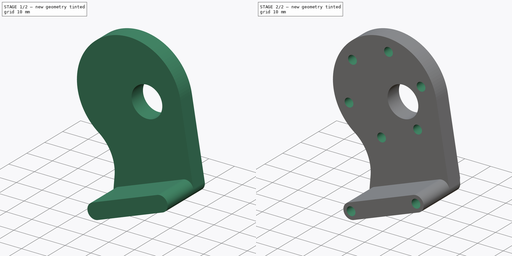
[diagram: build sequence overview — one tinted view per stage of 2, left to right]
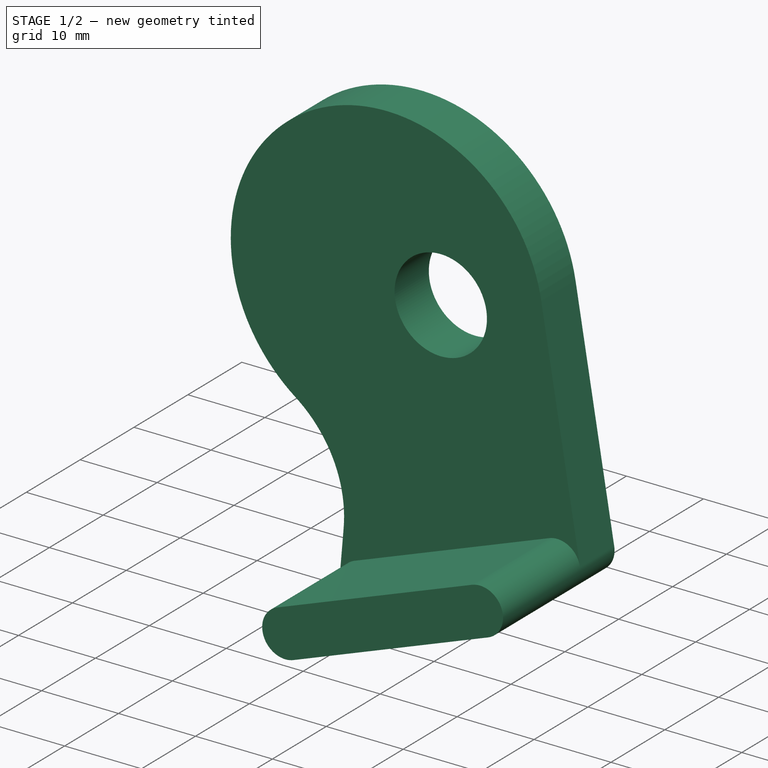
[diagram: stage 1 of 2 — iso view after this stage's code; geometry added in this stage tinted green]
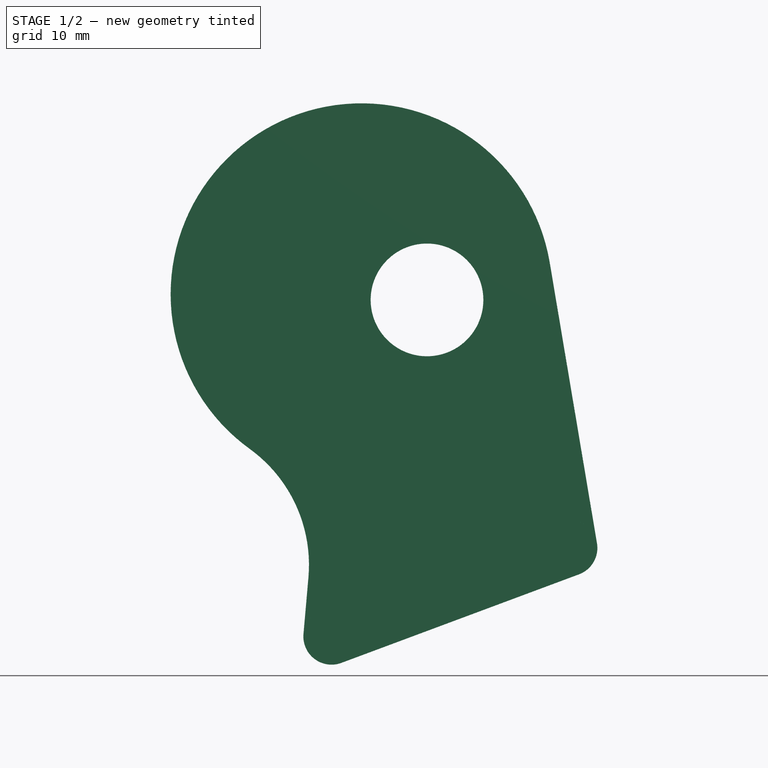
[diagram: stage 1 of 2 — front view after this stage's code; geometry added in this stage tinted green]
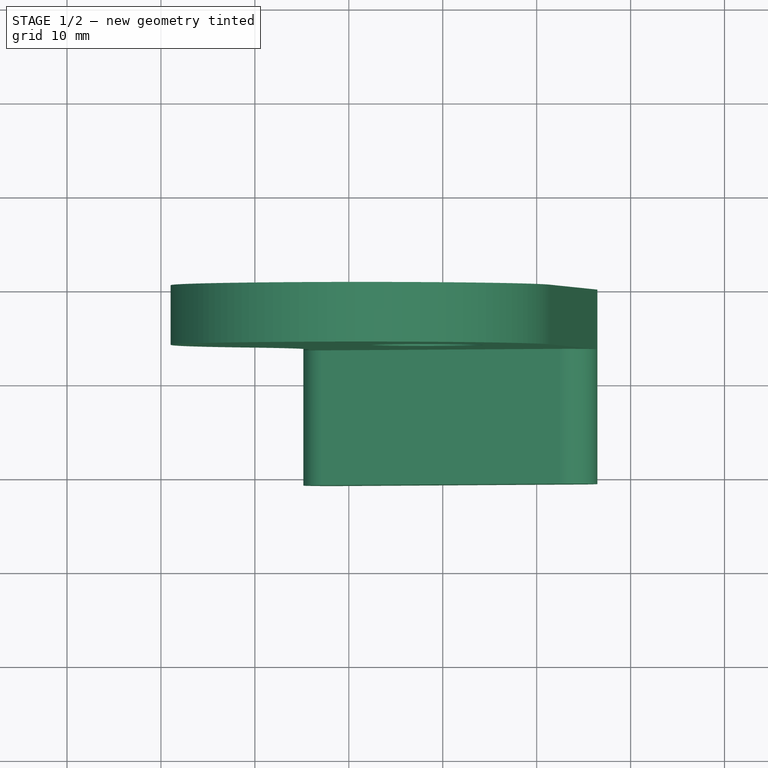
[diagram: stage 1 of 2 — top view after this stage's code; geometry added in this stage tinted green]
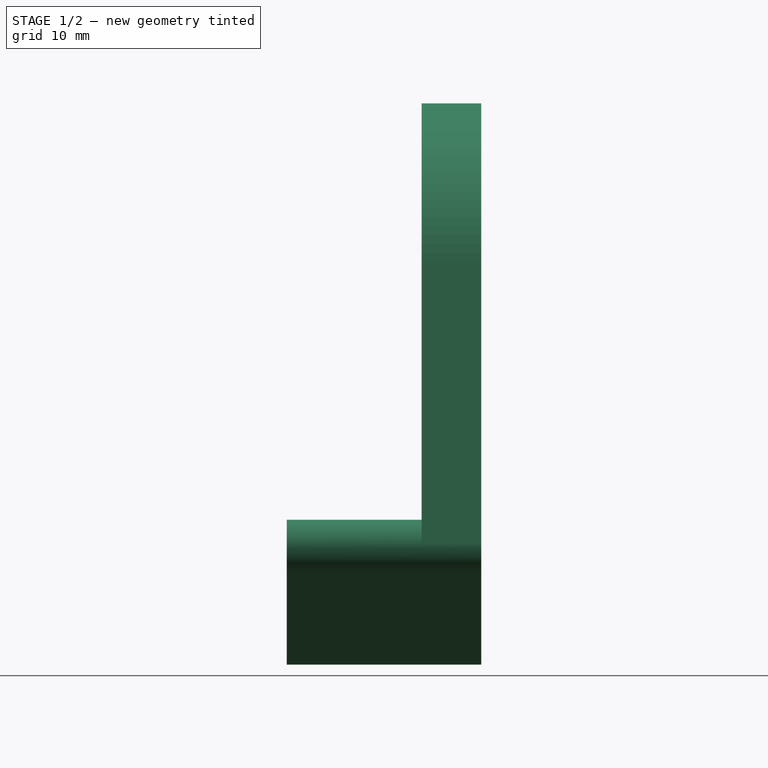
[diagram: stage 1 of 2 — right view after this stage's code; geometry added in this stage tinted green]
FCSTD DOCUMENT  (FreeCAD 1.0R39109 (Git))
Label: front bracket v2
License: All rights reserved
LicenseURL: https://en.wikipedia.org/wiki/All_rights_reserved
objects: Sketcher::SketchObject×3, PartDesign::Pad×2, PartDesign::Hole×1, PartDesign::Body×1
note: 16 computed .brp shape members not serialized (recipe doc carries the construction recipe); baked Part::Feature solids carry a one-line shape summary decoded from their .brp

FEATURE [Sketcher::SketchObject] Sketch
  ArcFitTolerance = 1e-06
  AttachmentSupport = -> [XZ_Plane]
  FullyConstrained = true
  MakeInternals = false
  MapMode = 5
  Placement = pos=(0,0,0) rot=(1,0,0;1.5708rad)
  sketch-geometry (24):
    g0: GeomPoint X=0 Y=0 Z=0
    g1: GeomPoint X=-1.83742 Y=-21.0018 Z=0
    g2: GeomPoint X=2.70183 Y=30.882 Z=0
    g3: GeomPoint X=23.4629 Y=-11.5734 Z=0
    g4: LineSegment [constr] StartX=-1.83742 StartY=-21.0018 StartZ=0 EndX=2.70183 EndY=30.882 EndZ=0
    g5: LineSegment [constr] StartX=2.70183 StartY=30.882 StartZ=0 EndX=-11.3459 EndY=24.3315 EndZ=0
    g6: LineSegment [constr] StartX=-11.3459 StartY=24.3315 StartZ=0 EndX=-12.6969 EndY=8.89043 EndZ=0
    g7: LineSegment [constr] StartX=-12.6969 StartY=8.89043 StartZ=0 EndX=0 EndY=0 EndZ=0
    g8: LineSegment [constr] StartX=0 StartY=0 StartZ=0 EndX=14.0478 EndY=6.55058 EndZ=0
    g9: LineSegment [constr] StartX=14.0478 StartY=6.55058 StartZ=0 EndX=15.3987 EndY=21.9916 EndZ=0
    g10: LineSegment [constr] StartX=15.3987 StartY=21.9916 StartZ=0 EndX=2.70183 EndY=30.882 EndZ=0
    g11: Circle [constr] CenterX=1.35091 CenterY=15.441 CenterZ=0 NormalX=0 NormalY=0 NormalZ=1 AngleXU=0 Radius=15.5
    g12: ArcOfCircle CenterX=1.35091 CenterY=15.441 CenterZ=0 NormalX=0 NormalY=0 NormalZ=1 AngleXU=0 Radius=20.32 StartAngle=0.166798 EndAngle=4.08652
    g13: ArcOfCircle CenterX=-1.83742 CenterY=-21.0018 CenterZ=0 NormalX=0 NormalY=0 NormalZ=1 AngleXU=0 Radius=3 StartAngle=3.05433 EndAngle=5.06911
    g14: ArcOfCircle CenterX=23.4629 CenterY=-11.5734 CenterZ=0 NormalX=0 NormalY=0 NormalZ=1 AngleXU=0 Radius=3 StartAngle=5.06911 EndAngle=6.44998
    g15: LineSegment StartX=-0.789818 StartY=-23.8129 StartZ=0 EndX=24.5105 EndY=-14.3845 EndZ=0
    g16: LineSegment StartX=26.4213 StartY=-11.0753 StartZ=0 EndX=21.3889 EndY=18.8147 EndZ=0
    g17: LineSegment [constr] StartX=1.35091 StartY=15.441 StartZ=0 EndX=14.7232 EndY=14.2711 EndZ=0
    g18: Circle CenterX=8.32428 CenterY=14.8309 CenterZ=0 NormalX=0 NormalY=0 NormalZ=1 AngleXU=0 Radius=6
    g19: Circle [constr] CenterX=1.35091 CenterY=15.441 CenterZ=0 NormalX=0 NormalY=0 NormalZ=1 AngleXU=0 Radius=18.415
    g20: ArcOfCircle CenterX=-19.4802 CenterY=-13.3788 CenterZ=0 NormalX=0 NormalY=0 NormalZ=1 AngleXU=0 Radius=15.24 StartAngle=6.19592 EndAngle=7.22811
    g21: LineSegment StartX=-4.29816 StartY=-14.707 StartZ=0 EndX=-4.826 EndY=-20.7403 EndZ=0
    g22: LineSegment [constr] StartX=-1.39616 StartY=-15.9582 StartZ=0 EndX=21.8663 EndY=-7.2892 EndZ=0
    g23: LineSegment [constr] StartX=21.8663 StartY=-7.2892 StartZ=0 EndX=23.4629 EndY=-11.5734 EndZ=0
  constraints (53):
    c: Coincident(g0,g-1)
    c: Distance(g1,g3) = 27
    c: Coincident(g4,g1)
    c: Coincident(g4,g2)
    c: PointOnObject(g0,g4)
    c: Distance(g0,g1) = 21.082
    c: Distance(g0,g3) = 26.162
    c: Distance(g2,g0) = 31
    c: Coincident(g5,g6)
    c: Coincident(g6,g7)
    c: Coincident(g7,g8)
    c: Coincident(g8,g9)
    c: Coincident(g9,g10)
    c: Coincident(g10,g5)
    c: Equal(g5, g6-g10) x5
    c: PointOnObject(g5,g11)
    c: PointOnObject(g6,g11)
    c: PointOnObject(g7,g11)
    c: PointOnObject(g8,g11)
    c: PointOnObject(g9,g11)
    c: PointOnObject(g10,g11)
    c: Coincident(g10,g2)
    c: Coincident(g7,g0)
    c: Angle(g-1,g4) = 1.48353
    c: Coincident(g12,g11)
    c: Coincident(g13,g1)
    c: Coincident(g14,g3)
    c: Tangent(g15,g13) = -1.5708
    c: Tangent(g15,g14) = -1.5708
    c: Tangent(g16,g14) = -1.5708
    c: Tangent(g16,g12) = -1.5708
    c: Equal(g14,g13)
    c: Radius(g12) = 20.32
    c: PointOnObject(g18,g17)
    c: Diameter(g18) = 12
    c: Distance(g18,g17) = 7
    c: Coincident(g11,g17)
    c: Coincident(g19,g11)
    c: Diameter(g19) = 36.83
    c: Radius(g14) = 3
    c: Tangent(g20,g12) = 1.5708
    c: Parallel(g4,g21)
    c: Tangent(g21,g13) = -1.5708
    c: Tangent(g21,g20) = 1.5708
    c: Radius(g20) = 15.24
    c: PointOnObject(g22,g4)
    c: Coincident(g23,g22)
    c: Coincident(g23,g3)
    c: Perpendicular(g23,g22)
    c: Distance(g23,g23) = 4.572
    c: Parallel(g15,g22)
    c: Distance(g19,g22) = 10.0483
    c: Symmetric(g9,g9,g17)
FEATURE [PartDesign::Pad] Pad
  Direction = (0,-1,2e-16)
  Length = 6.35
  Length2 = 10
  Placement = pos=(0,0,0) rot=(1,0,0;1.5708rad)
  Profile = -> Sketch
  ReferenceAxis = -> Sketch [N_Axis]
  Refine = true
  Suppressed = false
  Type = 0
FEATURE [Sketcher::SketchObject] Sketch001
  ArcFitTolerance = 1e-06
  AttachmentSupport = -> [Pad]
  ExternalGeometry = -> [Pad]
  FullyConstrained = true
  MakeInternals = false
  MapMode = 5
  Placement = pos=(0,-6.35,0) rot=(1,0,0;1.5708rad)
  sketch-geometry (4):
    g0: ArcOfCircle CenterX=-1.83742 CenterY=-21.0018 CenterZ=0 NormalX=0 NormalY=0 NormalZ=1 AngleXU=0 Radius=3 StartAngle=1.92751 EndAngle=5.06911
    g1: ArcOfCircle CenterX=23.4629 CenterY=-11.5734 CenterZ=0 NormalX=0 NormalY=0 NormalZ=1 AngleXU=0 Radius=3 StartAngle=5.06911 EndAngle=8.2107
    g2: LineSegment StartX=-2.88502 StartY=-18.1906 StartZ=0 EndX=22.4153 EndY=-8.76224 EndZ=0
    g3: LineSegment StartX=-0.789818 StartY=-23.8129 StartZ=0 EndX=24.5105 EndY=-14.3845 EndZ=0
  constraints (7):
    c: Tangent(g0,g2) = 1.5708
    c: Tangent(g0,g3) = -1.5708
    c: Tangent(g1,g2) = 1.5708
    c: Tangent(g1,g3) = -1.5708
    c: Coincident(g0,g-3)
    c: Coincident(g1,g-4)
    c: Coincident(g1,g-5)
FEATURE [PartDesign::Pad] Pad001
  BaseFeature = -> Pad
  Direction = (0,-1,2e-16)
  Length = 14.351
  Length2 = 10
  Placement = pos=(0,0,0) rot=(1,0,0;1.5708rad)
  Profile = -> Sketch001
  ReferenceAxis = -> Sketch001 [N_Axis]
  Refine = true
  Suppressed = false
  Type = 0
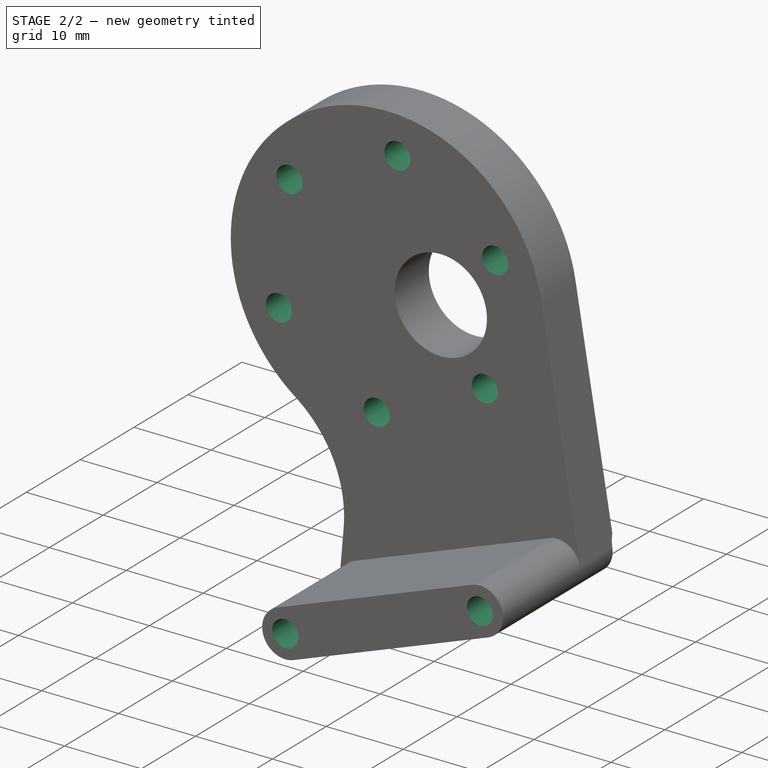
[diagram: stage 2 of 2 — iso view after this stage's code; geometry added in this stage tinted green]
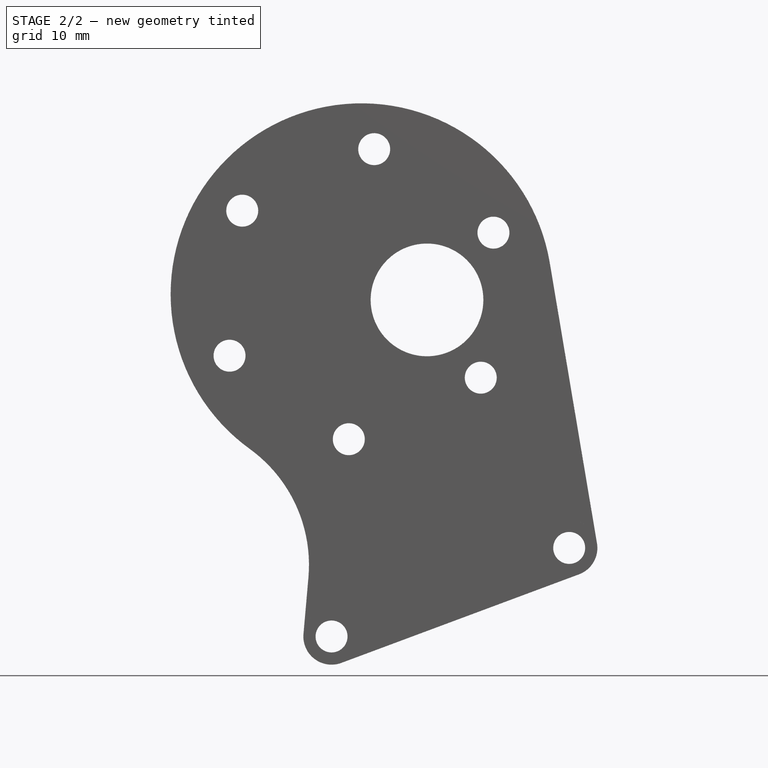
[diagram: stage 2 of 2 — front view after this stage's code; geometry added in this stage tinted green]
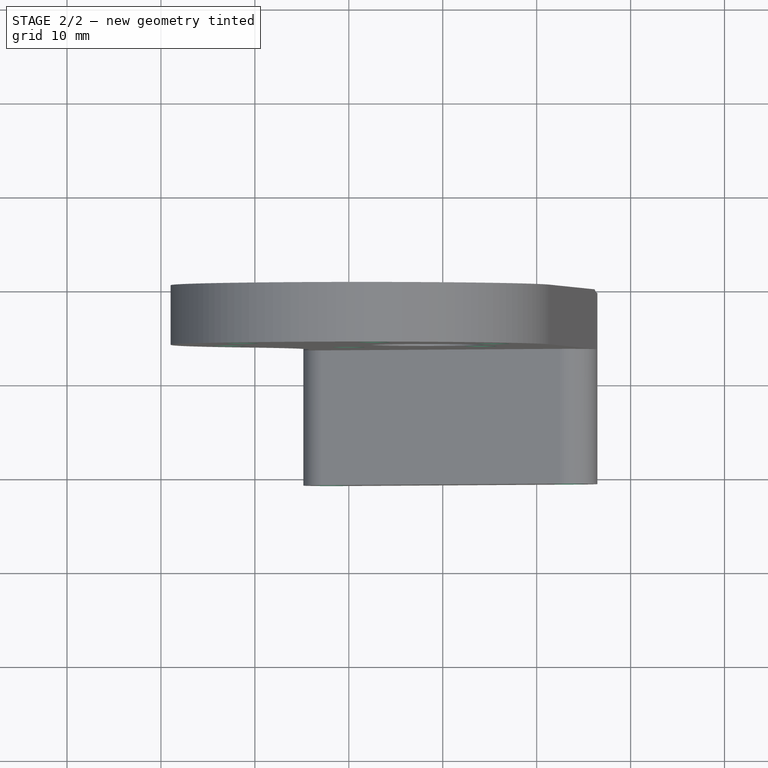
[diagram: stage 2 of 2 — top view after this stage's code; geometry added in this stage tinted green]
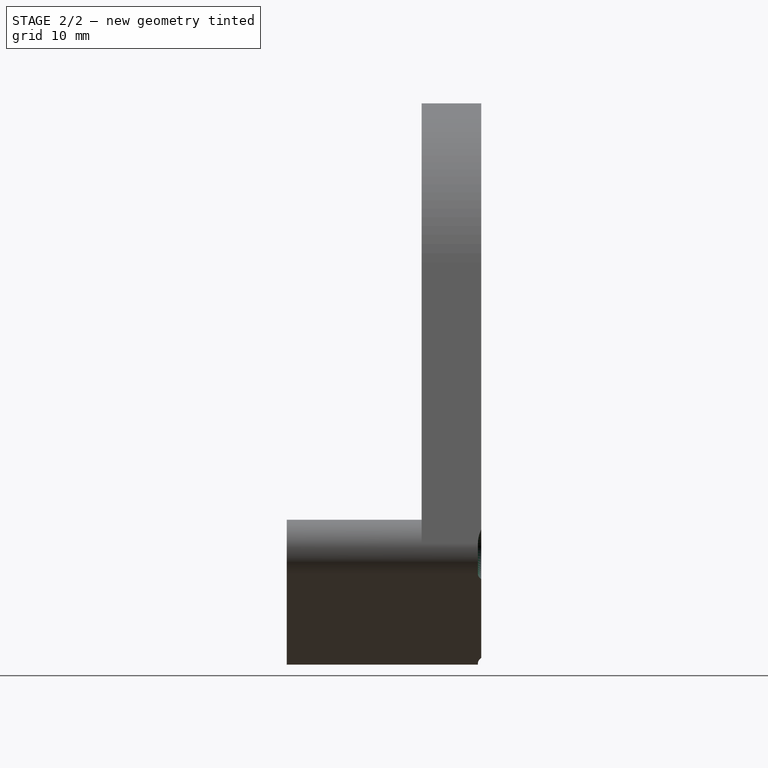
[diagram: stage 2 of 2 — right view after this stage's code; geometry added in this stage tinted green]
FEATURE [Sketcher::SketchObject] Sketch002
  ArcFitTolerance = 1e-06
  AttachmentSupport = -> [Pad001]
  ExternalGeometry = -> [Pad001]
  FullyConstrained = true
  MakeInternals = false
  MapMode = 5
  Placement = pos=(0,1.5e-15,0) rot=(-1,0,0;1.5708rad)
  sketch-geometry (16):
    g0: Circle CenterX=-1.83742 CenterY=21.0018 CenterZ=0 NormalX=0 NormalY=0 NormalZ=1 AngleXU=0 Radius=1.5
    g1: Circle CenterX=23.4629 CenterY=11.5734 CenterZ=0 NormalX=0 NormalY=0 NormalZ=1 AngleXU=0 Radius=1.5
    g2: LineSegment [constr] StartX=-12.6969 StartY=-8.89043 StartZ=0 EndX=-11.3459 EndY=-24.3315 EndZ=0
    g3: LineSegment [constr] StartX=-11.3459 StartY=-24.3315 StartZ=0 EndX=2.70183 EndY=-30.882 EndZ=0
    g4: LineSegment [constr] StartX=2.70183 StartY=-30.882 StartZ=0 EndX=15.3987 EndY=-21.9916 EndZ=0
    g5: LineSegment [constr] StartX=15.3987 StartY=-21.9916 StartZ=0 EndX=14.0478 EndY=-6.55058 EndZ=0
    g6: LineSegment [constr] StartX=14.0478 StartY=-6.55058 StartZ=0 EndX=1.8723e-12 EndY=1.625e-13 EndZ=0
    g7: LineSegment [constr] StartX=1.8723e-12 StartY=1.629e-13 StartZ=0 EndX=-12.6969 EndY=-8.89043 EndZ=0
    g8: Circle [constr] CenterX=1.35091 CenterY=-15.441 CenterZ=0 NormalX=0 NormalY=0 NormalZ=1 AngleXU=0 Radius=15.5
    g9: LineSegment [constr] StartX=1.35091 StartY=-15.441 StartZ=0 EndX=-12.0214 EndY=-16.6109 EndZ=0
    g10: Circle CenterX=15.3987 CenterY=-21.9916 CenterZ=0 NormalX=0 NormalY=0 NormalZ=1 AngleXU=0 Radius=1.5
    g11: Circle CenterX=2.70183 CenterY=-30.882 CenterZ=0 NormalX=0 NormalY=0 NormalZ=1 AngleXU=0 Radius=1.5
    g12: Circle CenterX=-11.3459 CenterY=-24.3315 CenterZ=0 NormalX=0 NormalY=0 NormalZ=1 AngleXU=0 Radius=1.5
    g13: Circle CenterX=-12.6969 CenterY=-8.89043 CenterZ=0 NormalX=0 NormalY=0 NormalZ=1 AngleXU=0 Radius=1.5
    g14: Circle CenterX=1.8723e-12 CenterY=1.629e-13 CenterZ=0 NormalX=0 NormalY=0 NormalZ=1 AngleXU=0 Radius=1.5
    g15: Circle CenterX=14.0478 CenterY=-6.55058 CenterZ=0 NormalX=0 NormalY=0 NormalZ=1 AngleXU=0 Radius=1.5
  constraints (34):
    c: Coincident(g0,g-3)
    c: Coincident(g1,g-4)
    c: Coincident(g2,g3)
    c: Coincident(g3,g4)
    c: Coincident(g4,g5)
    c: Coincident(g5,g6)
    c: Coincident(g6,g7)
    c: Coincident(g7,g2)
    c: Equal(g2, g3-g7) x5
    c: PointOnObject(g2,g8)
    c: PointOnObject(g3,g8)
    c: PointOnObject(g4,g8)
    c: PointOnObject(g5,g8)
    c: PointOnObject(g6,g8)
    c: PointOnObject(g7,g8)
    c: Coincident(g8,g-5)
    c: Coincident(g9,g-5)
    c: Symmetric(g2,g2,g9)
    c: PointOnObject(g-6,g9)
    c: Coincident(g10,g4)
    c: Coincident(g11,g3)
    c: Coincident(g12,g2)
    c: Coincident(g13,g2)
    c: Coincident(g14,g6)
    c: Coincident(g15,g5)
    c: Equal(g0,g1)
    c: Equal(g1,g10)
    c: Equal(g10,g11)
    c: Equal(g11,g12)
    c: Equal(g12,g13)
    c: Equal(g13,g14)
    c: Equal(g14,g15)
    c: Diameter(g0) = 3
    c: Diameter(g8) = 31
FEATURE [PartDesign::Hole] Hole
  BaseFeature = -> Pad001
  CustomThreadClearance = 0
  Depth = 170.181
  DepthType = 1
  Diameter = 3.4
  DrillForDepth = false
  DrillPoint = 1
  DrillPointAngle = 118
  HoleCutCountersinkAngle = 90
  HoleCutCustomValues = false
  HoleCutDepth = 0
  HoleCutDiameter = 6.7
  HoleCutType = 2
  ModelThread = false
  Placement = pos=(0,0,0) rot=(1,0,0;1.5708rad)
  Profile = -> Sketch002
  Refine = true
  Suppressed = false
  Tapered = false
  TaperedAngle = 90
  ThreadClass = 0
  ThreadDepth = 170.181
  ThreadDepthType = 0
  ThreadDirection = 0
  ThreadFit = 0
  ThreadSize = 9
  ThreadType = 1
  Threaded = false
  UseCustomThreadClearance = false
FEATURE [PartDesign::Body] Body
  AllowCompound = false
  Group = -> [Sketch,Pad,Sketch001,Pad001,Sketch002,Hole]
  Origin = -> Origin
  Tip = -> Hole
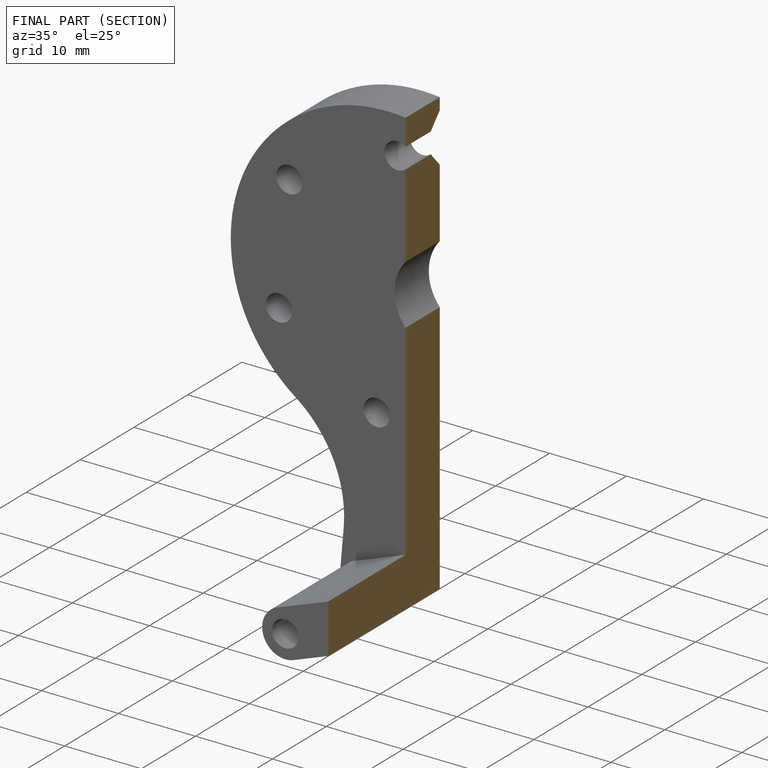
[diagram: finished part — half-section view (interior)]
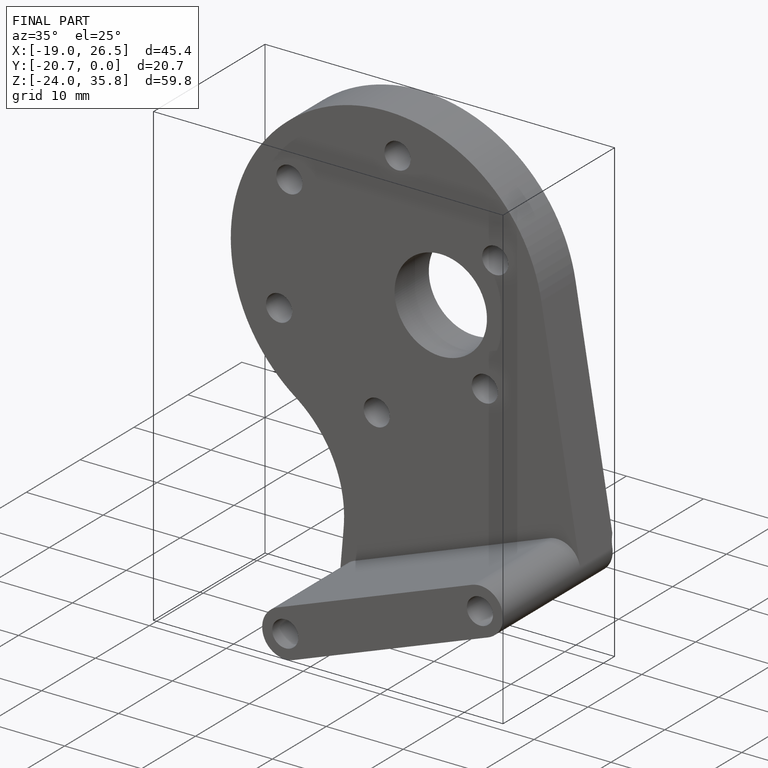
[diagram: finished part — iso view with bounding-box wireframe]
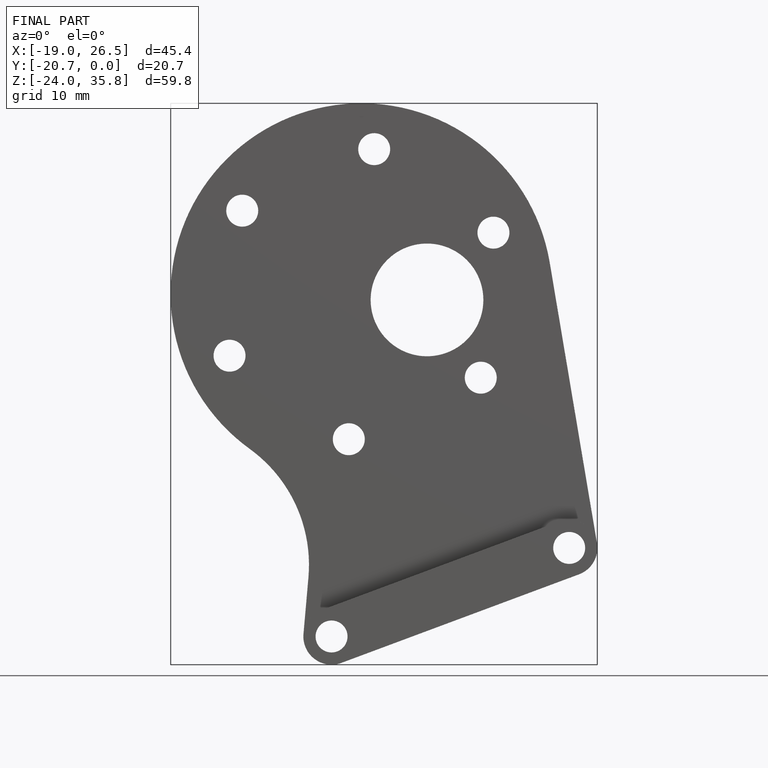
[diagram: finished part — front view with bounding-box wireframe]
